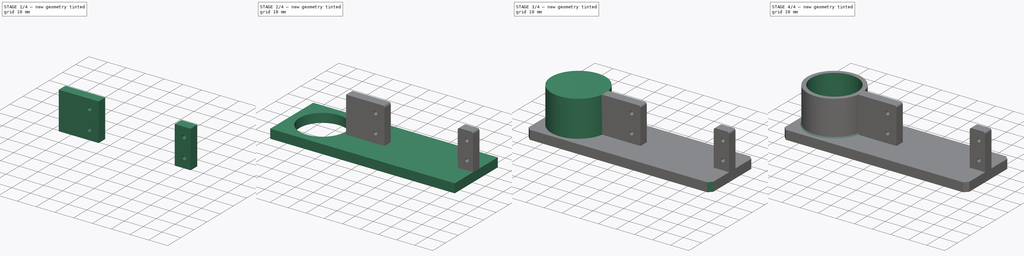
[diagram: build sequence overview — one tinted view per stage of 4, left to right]
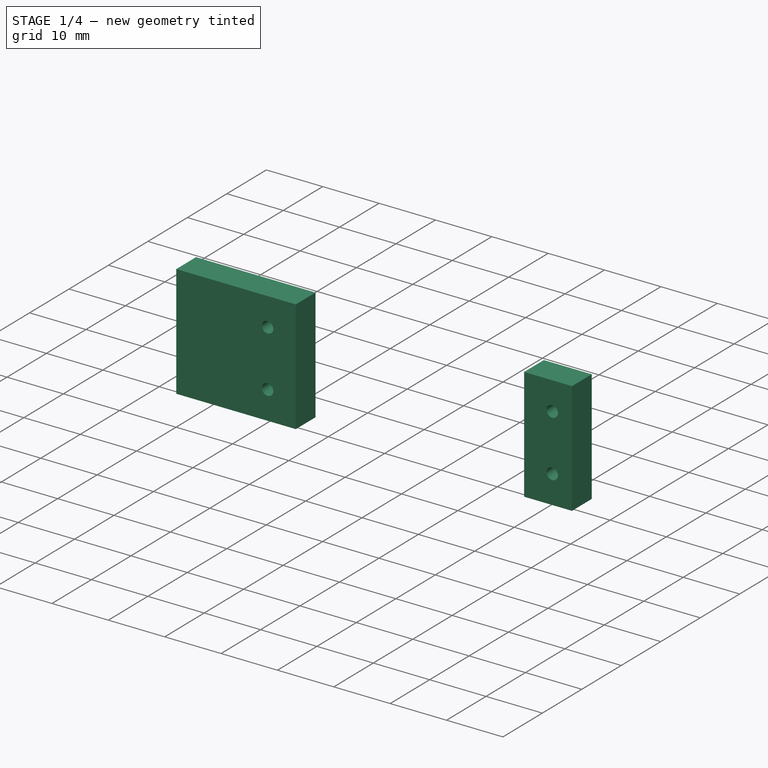
[diagram: stage 1 of 4 — iso view after this stage's code; geometry added in this stage tinted green]
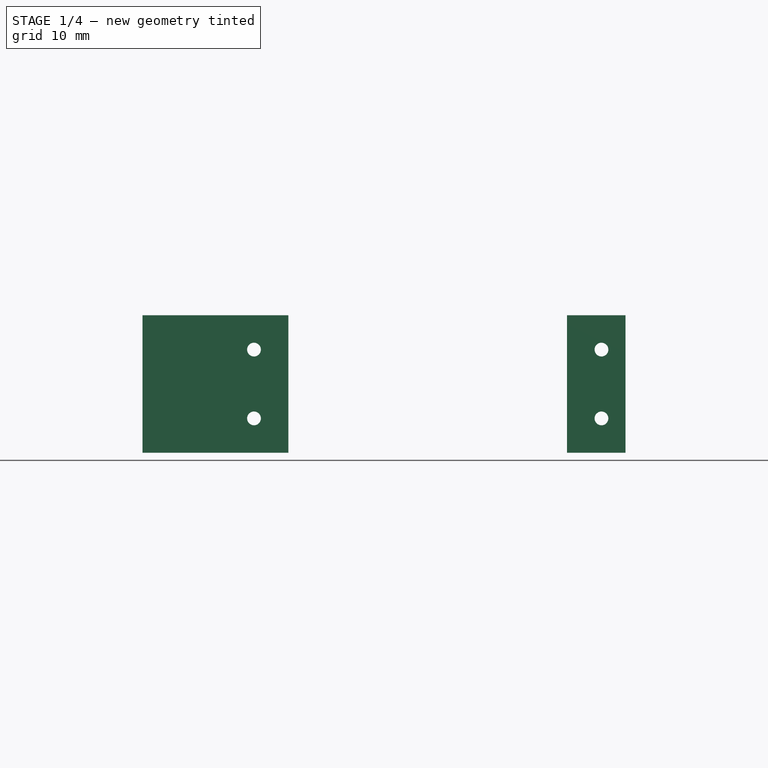
[diagram: stage 1 of 4 — front view after this stage's code; geometry added in this stage tinted green]
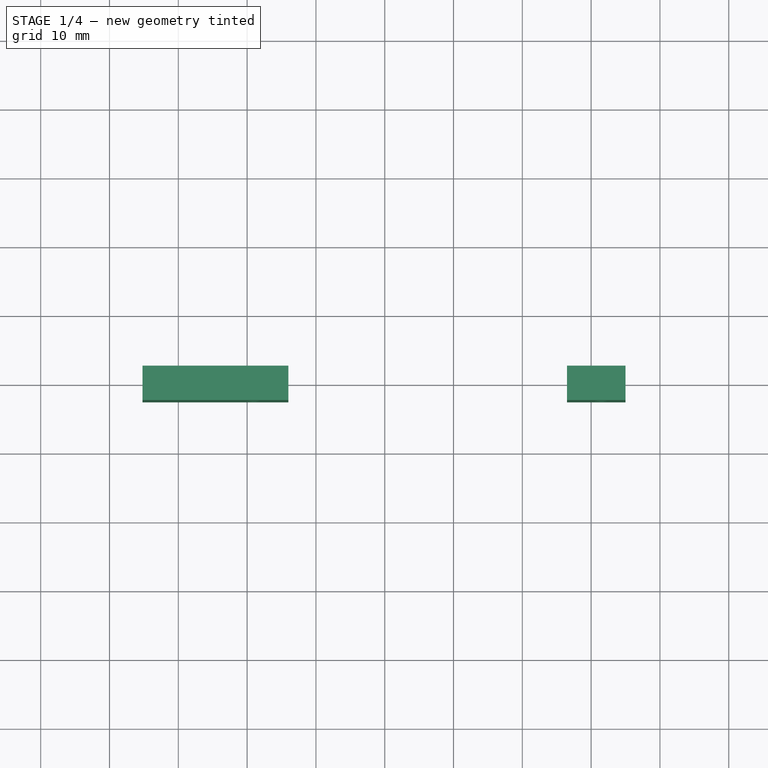
[diagram: stage 1 of 4 — top view after this stage's code; geometry added in this stage tinted green]
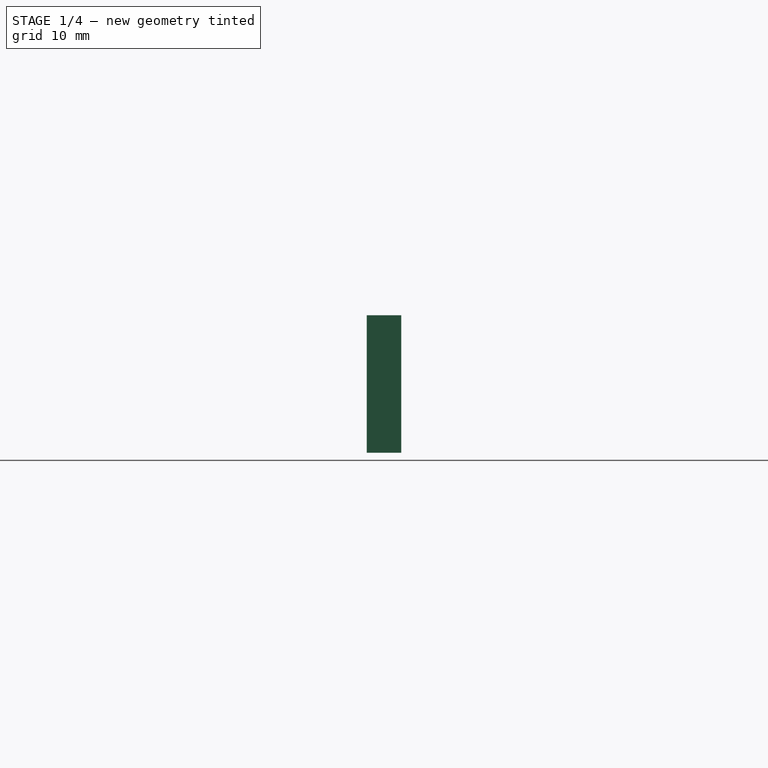
[diagram: stage 1 of 4 — right view after this stage's code; geometry added in this stage tinted green]
FCSTD DOCUMENT  (FreeCAD 0.15R4671 (Git))
Label: servo-mount
License: All rights reserved
LicenseURL: http://en.wikipedia.org/wiki/All_rights_reserved
objects: Sketcher::SketchObject×6, PartDesign::Pad×4, PartDesign::Pocket×2, PartDesign::Fillet×2, Drawing::FeatureViewPart×2, PartDesign::Chamfer×1, Part::Cut×1, Part::Fuse×1, Drawing::FeaturePage×1
note: 23 computed .brp shape members not serialized (recipe doc carries the construction recipe); baked Part::Feature solids carry a one-line shape summary decoded from their .brp

FEATURE [Sketcher::SketchObject] Sketch004
  Placement = pos=(0,0,5) rot=(0,0,1;0rad)
  sketch-geometry (6):
    g0: Circle [constr] CenterX=0 CenterY=0 CenterZ=0 NormalX=0 NormalY=0 NormalZ=1 Radius=15
    g1: GeomPoint [constr] X=65 Y=0 Z=0
    g2: LineSegment StartX=14.7902 StartY=-2.5 StartZ=0 EndX=85 EndY=-2.5 EndZ=0
    g3: LineSegment StartX=85 StartY=-2.5 StartZ=0 EndX=85 EndY=2.5 EndZ=0
    g4: LineSegment StartX=85 StartY=2.5 StartZ=0 EndX=14.7902 EndY=2.5 EndZ=0
    g5: LineSegment StartX=14.7902 StartY=2.5 StartZ=0 EndX=14.7902 EndY=-2.5 EndZ=0
  constraints (16):
    c: Coincident(g0,g-1)
    c: Radius(g0) = 15
    c: PointOnObject(g1,g-1)
    c: DistanceX(g-1,g1) = 65
    c: Coincident(g2,g3)
    c: Coincident(g3,g4)
    c: Coincident(g4,g5)
    c: Coincident(g5,g2)
    c: Horizontal(g2)
    c: Horizontal(g4)
    c: Vertical(g3)
    c: Vertical(g5)
    c: Symmetric(g2,g4,g-1)
    c: DistanceY(g3,g2) = -5
    c: PointOnObject(g4,g0)
    c: Distance(g1,g3) = 20
FEATURE [Sketcher::SketchObject] Sketch005
  Placement = pos=(0,-2.5,5) rot=(1,0,0;1.5708rad)
  sketch-geometry (8):
    g0: LineSegment StartX=36 StartY=20 StartZ=0 EndX=76.5 EndY=20 EndZ=0
    g1: LineSegment StartX=76.5 StartY=20 StartZ=0 EndX=76.5 EndY=0 EndZ=0
    g2: LineSegment StartX=76.5 StartY=0 StartZ=0 EndX=36 EndY=0 EndZ=0
    g3: LineSegment StartX=36 StartY=0 StartZ=0 EndX=36 EndY=20 EndZ=0
    g4: Circle CenterX=81.5 CenterY=15 CenterZ=0 NormalX=0 NormalY=0 NormalZ=1 Radius=1
    g5: Circle CenterX=81.5 CenterY=5 CenterZ=0 NormalX=0 NormalY=0 NormalZ=1 Radius=1
    g6: Circle CenterX=31 CenterY=15 CenterZ=0 NormalX=0 NormalY=0 NormalZ=1 Radius=1
    g7: Circle CenterX=31 CenterY=5 CenterZ=0 NormalX=0 NormalY=0 NormalZ=1 Radius=1
  constraints (24):
    c: Coincident(g0,g1)
    c: Coincident(g1,g2)
    c: Coincident(g2,g3)
    c: Coincident(g3,g0)
    c: Horizontal(g0)
    c: Horizontal(g2)
    c: Vertical(g1)
    c: Vertical(g3)
    c: PointOnObject(g1,g-1)
    c: Distance(g0,g1) = 20
    c: DistanceX(g-1,g2) = 36
    c: DistanceX(g0,g0) = 40.5
    c: Radius(g4) = 1
    c: DistanceX(g4,g0) = -5
    c: DistanceY(g4,g0) = 5
    c: Radius(g5) = 1
    c: DistanceY(g5,g1) = -5
    c: DistanceX(g5,g1) = -5
    c: Radius(g6) = 1
    c: Radius(g7) = 1
    c: DistanceX(g6,g0) = 5
    c: DistanceY(g6,g0) = 5
    c: DistanceY(g7,g2) = -5
    c: DistanceX(g7,g2) = 5
FEATURE [PartDesign::Pad] Pad002
  Length = 5
  Length2 = 100
  Placement = pos=(0,-2.5,5) rot=(1,0,0;1.5708rad)
  Reversed = true
  Sketch = -> Sketch005
  Type = 0
FEATURE [PartDesign::Pad] Pad003
  Length = 20
  Length2 = 100
  Placement = pos=(0,0,5) rot=(0,0,1;0rad)
  Sketch = -> Sketch004
  Type = 0
FEATURE [Part::Cut] Cut
  Base = -> Pad003
  Tool = -> Pad002
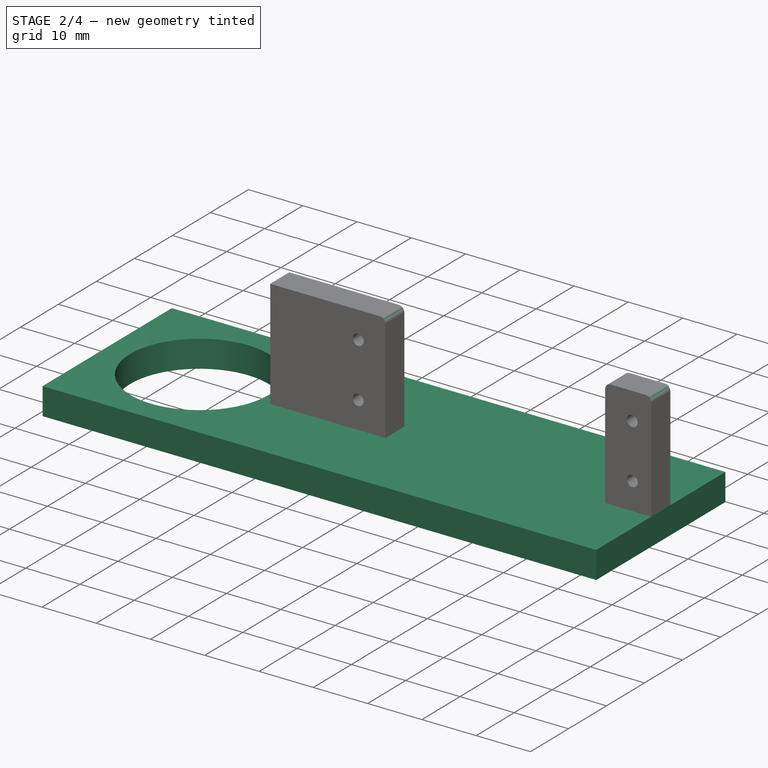
[diagram: stage 2 of 4 — iso view after this stage's code; geometry added in this stage tinted green]
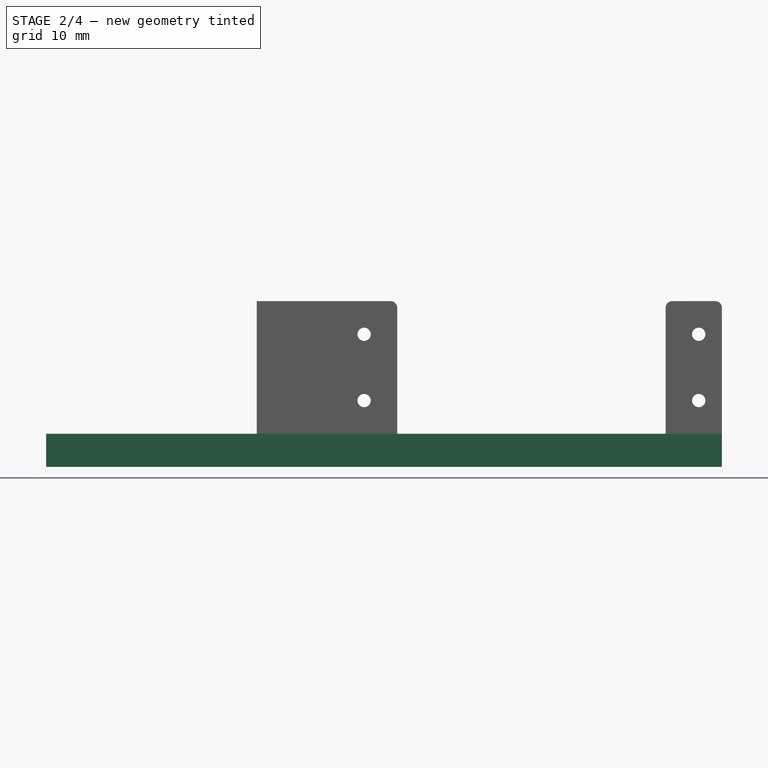
[diagram: stage 2 of 4 — front view after this stage's code; geometry added in this stage tinted green]
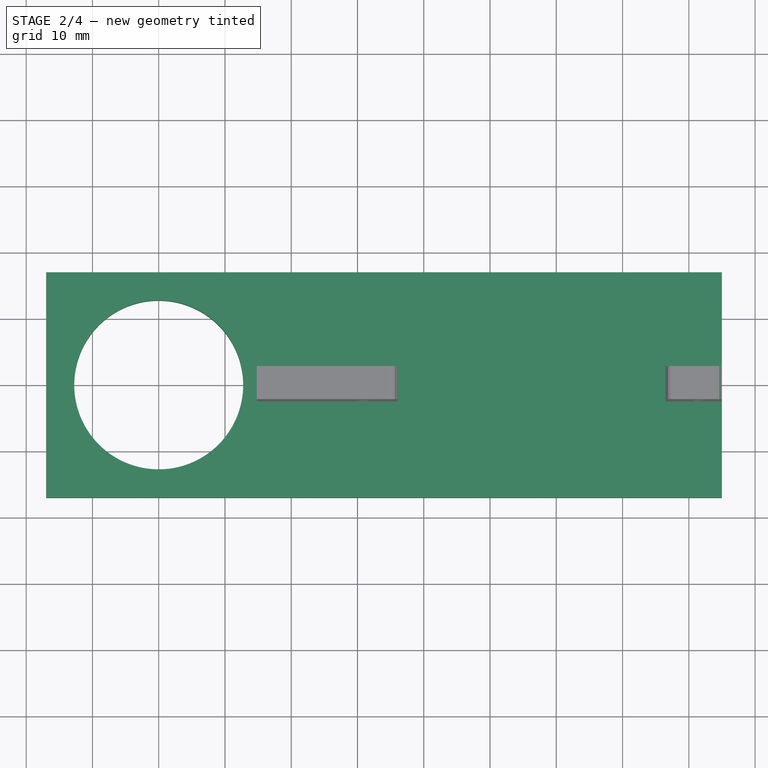
[diagram: stage 2 of 4 — top view after this stage's code; geometry added in this stage tinted green]
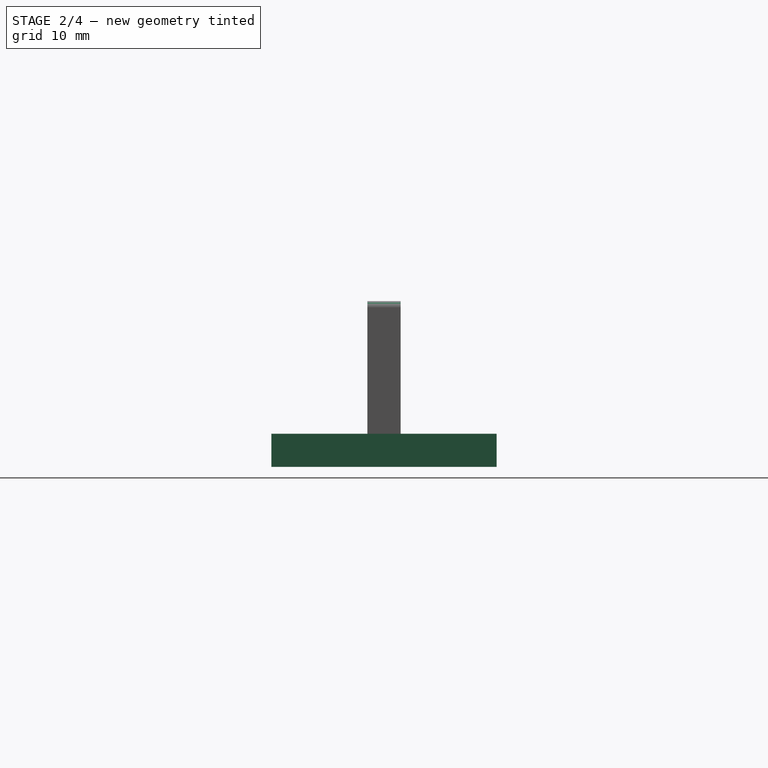
[diagram: stage 2 of 4 — right view after this stage's code; geometry added in this stage tinted green]
FEATURE [Sketcher::SketchObject] Sketch
  sketch-geometry (8):
    g0: Circle [constr] CenterX=0 CenterY=0 CenterZ=0 NormalX=0 NormalY=0 NormalZ=1 Radius=12.75
    g1: LineSegment StartX=-17 StartY=17 StartZ=0 EndX=85 EndY=17 EndZ=0
    g2: LineSegment StartX=85 StartY=17 StartZ=0 EndX=85 EndY=-17 EndZ=0
    g3: LineSegment StartX=85 StartY=-17 StartZ=0 EndX=-17 EndY=-17 EndZ=0
    g4: LineSegment StartX=-17 StartY=-17 StartZ=0 EndX=-17 EndY=17 EndZ=0
    g5: LineSegment [constr] StartX=0 StartY=0 StartZ=0 EndX=0 EndY=17 EndZ=0
    g6: LineSegment [constr] StartX=0 StartY=0 StartZ=0 EndX=-17 EndY=0 EndZ=0
    g7: LineSegment [constr] StartX=0 StartY=0 StartZ=0 EndX=85 EndY=0 EndZ=0
  constraints (23):
    c: Coincident(g0,g-1)
    c: Radius(g0) = 12.75
    c: Coincident(g1,g2)
    c: Coincident(g2,g3)
    c: Coincident(g3,g4)
    c: Coincident(g4,g1)
    c: Horizontal(g1)
    c: Horizontal(g3)
    c: Vertical(g2)
    c: Vertical(g4)
    c: Symmetric(g1,g3,g-1)
    c: Coincident(g5,g-1)
    c: PointOnObject(g5,g1)
    c: Vertical(g5)
    c: Distance(g5) = 17
    c: Coincident(g6,g-1)
    c: PointOnObject(g6,g4)
    c: Horizontal(g6)
    c: Distance(g6) = 17
    c: Coincident(g7,g-1)
    c: PointOnObject(g7,g2)
    c: Horizontal(g7)
    c: Distance(g7) = 85
FEATURE [PartDesign::Pad] Pad
  Length = 5
  Length2 = 100
  Sketch = -> Sketch
  Type = 0
FEATURE [Sketcher::SketchObject] Sketch001
  Placement = pos=(0,0,0) rot=(1,0,0;3.14159rad)
  Support = -> Pad [Face5]
  sketch-geometry (1):
    g0: Circle CenterX=0 CenterY=0 CenterZ=0 NormalX=0 NormalY=0 NormalZ=1 Radius=12.75
  constraints (2):
    c: Coincident(g0,g-1)
    c: Radius(g0) = 12.75
FEATURE [PartDesign::Pocket] Pocket
  Length = 5
  Sketch = -> Sketch001
  Type = 0
FEATURE [PartDesign::Fillet] Fillet001
  Base = -> Cut [Edge31,Edge29,Edge11]
  Radius = 1
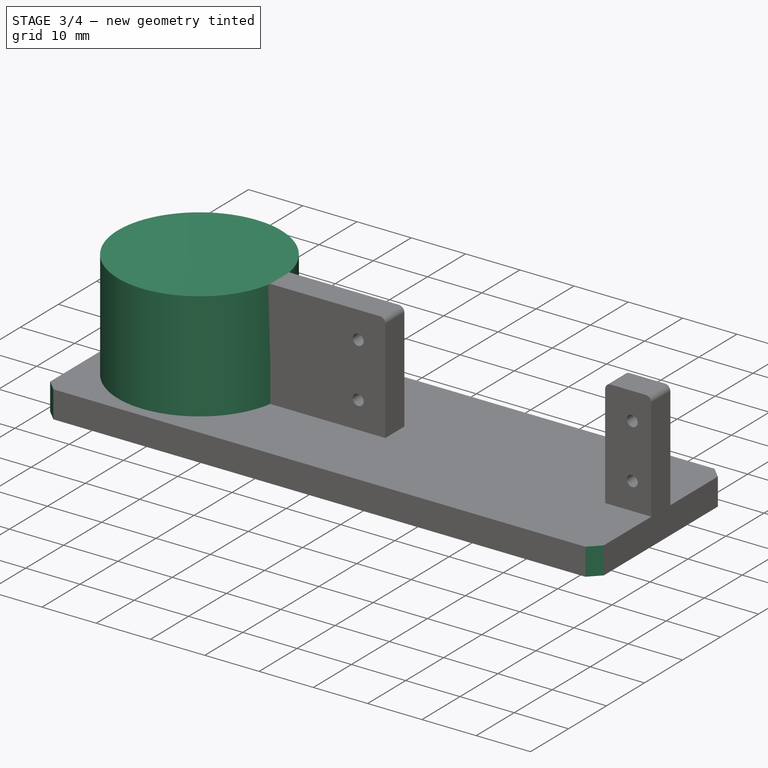
[diagram: stage 3 of 4 — iso view after this stage's code; geometry added in this stage tinted green]
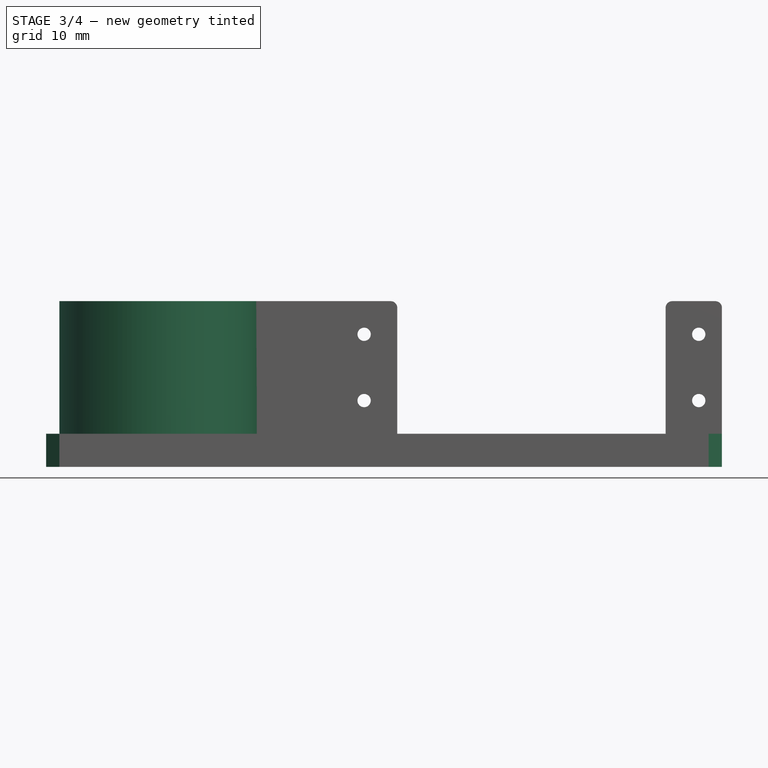
[diagram: stage 3 of 4 — front view after this stage's code; geometry added in this stage tinted green]
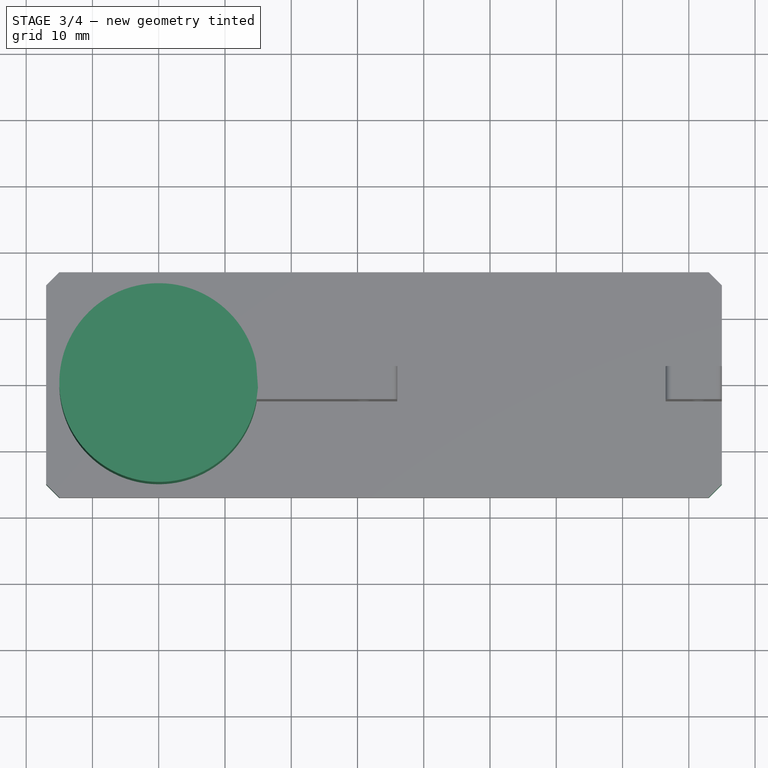
[diagram: stage 3 of 4 — top view after this stage's code; geometry added in this stage tinted green]
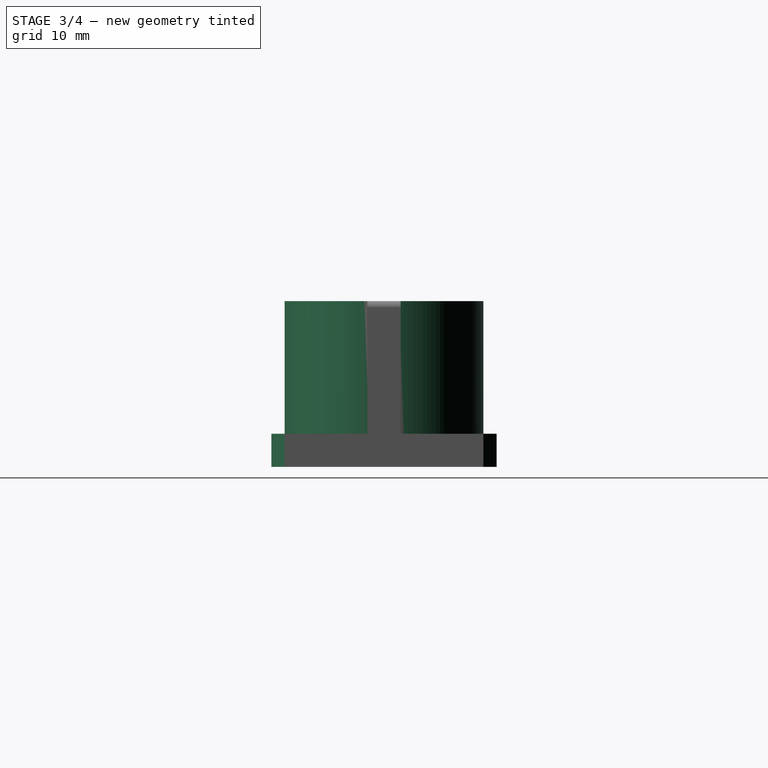
[diagram: stage 3 of 4 — right view after this stage's code; geometry added in this stage tinted green]
FEATURE [PartDesign::Chamfer] Chamfer
  Base = -> Pocket [Edge5,Edge8,Edge2,Edge1]
  Size = 2
FEATURE [Sketcher::SketchObject] Sketch002
  Placement = pos=(0,0,5) rot=(0,0,1;0rad)
  Support = -> Chamfer [Face5]
  sketch-geometry (1):
    g0: Circle CenterX=0 CenterY=0 CenterZ=0 NormalX=0 NormalY=0 NormalZ=1 Radius=15
  constraints (2):
    c: Coincident(g0,g-1)
    c: Radius(g0) = 15
FEATURE [PartDesign::Pad] Pad001
  Length = 20
  Length2 = 100
  Sketch = -> Sketch002
  Type = 0
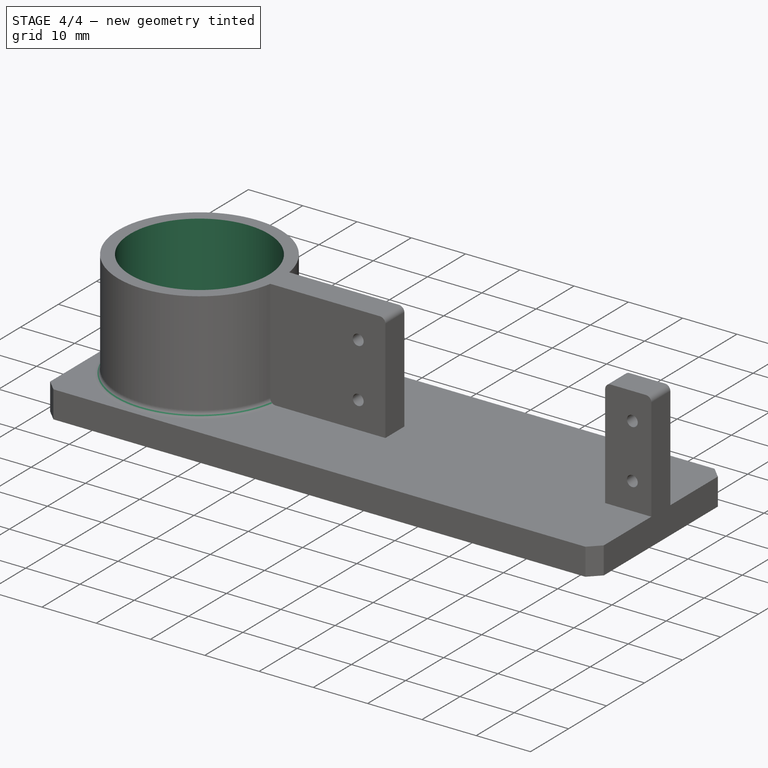
[diagram: stage 4 of 4 — iso view after this stage's code; geometry added in this stage tinted green]
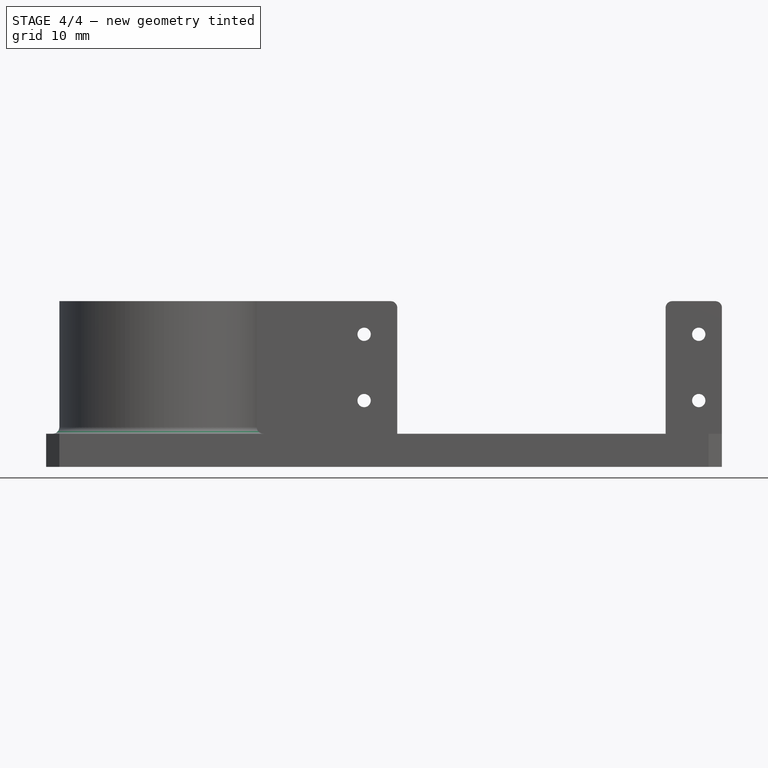
[diagram: stage 4 of 4 — front view after this stage's code; geometry added in this stage tinted green]
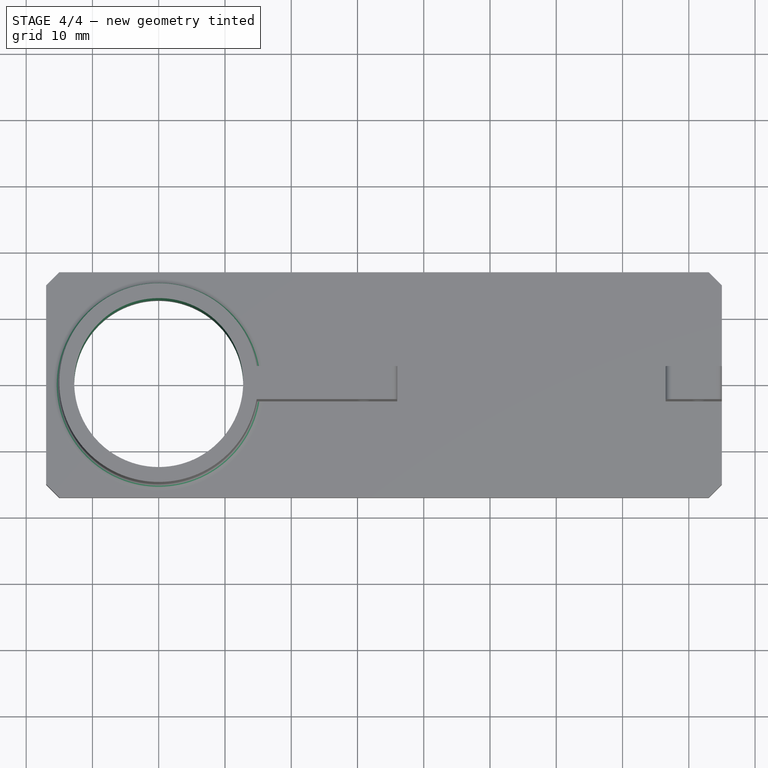
[diagram: stage 4 of 4 — top view after this stage's code; geometry added in this stage tinted green]
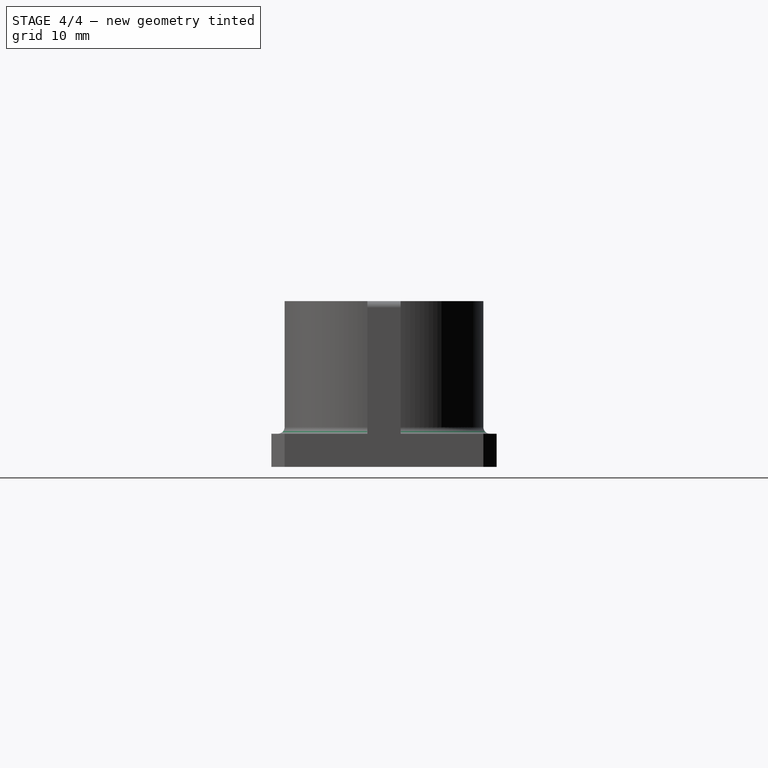
[diagram: stage 4 of 4 — right view after this stage's code; geometry added in this stage tinted green]
FEATURE [PartDesign::Fillet] Fillet
  Base = -> Pad001 [Edge2]
  Radius = 1
FEATURE [Part::Fuse] Fusion
  Base = -> Fillet
  Tool = -> Fillet001
FEATURE [Sketcher::SketchObject] Sketch006
  Placement = pos=(0,0,25) rot=(0,0,1;0rad)
  Support = -> Fusion [Face31]
  sketch-geometry (1):
    g0: Circle CenterX=0 CenterY=0 CenterZ=0 NormalX=0 NormalY=0 NormalZ=1 Radius=12.75
  constraints (2):
    c: Coincident(g0,g-1)
    c: Radius(g0) = 12.75
FEATURE [PartDesign::Pocket] Pocket001
  Length = 20
  Sketch = -> Sketch006
  Type = 0
FEATURE [Drawing::FeatureViewPart] View
  Direction = (0,0,1)
  HiddenWidth = 0.15
  LineWidth = 0.35
  Rotation = 0
  ShowHiddenLines = false
  ShowSmoothLines = false
  Source = -> Pocket001
  Tolerance = 0.05
  ViewResult = <blob: 2673 chars omitted>
  Visible = true
  X = 20
  Y = 20
FEATURE [Drawing::FeatureViewPart] View001
  Direction = (0,1,0)
  HiddenWidth = 0.15
  LineWidth = 0.35
  Rotation = 90
  ShowHiddenLines = false
  ShowSmoothLines = false
  Source = -> Pocket001
  Tolerance = 0.05
  ViewResult = <blob: 2276 chars omitted>
  Visible = true
  X = 20
  Y = 40
FEATURE [Drawing::FeaturePage] Page
  Group = -> [View,View001]
  Template = <path>
note: 1 file-system path scrubbed to <path> (originals preserved in the JSON sidecar)
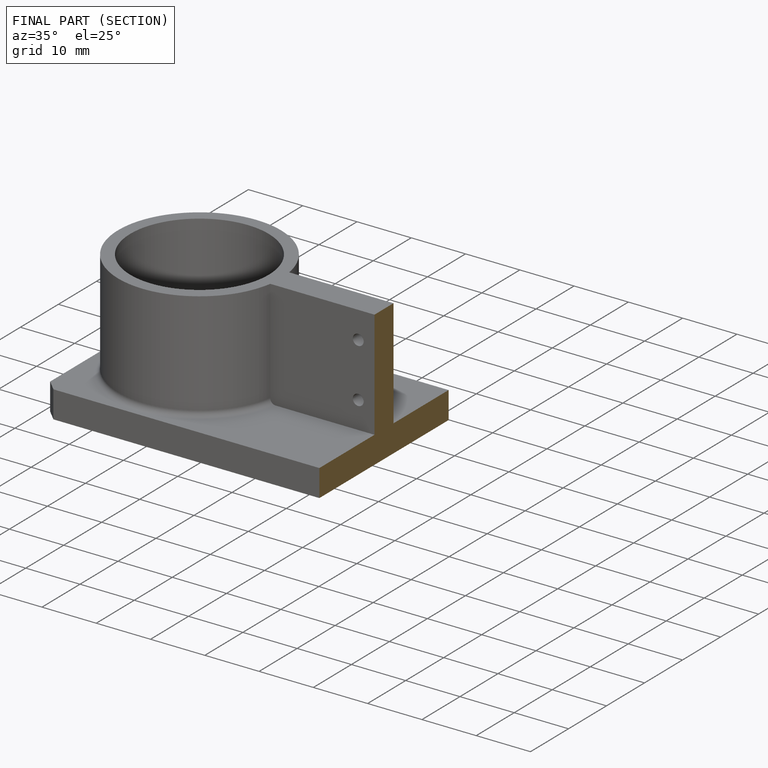
[diagram: finished part — half-section view (interior)]
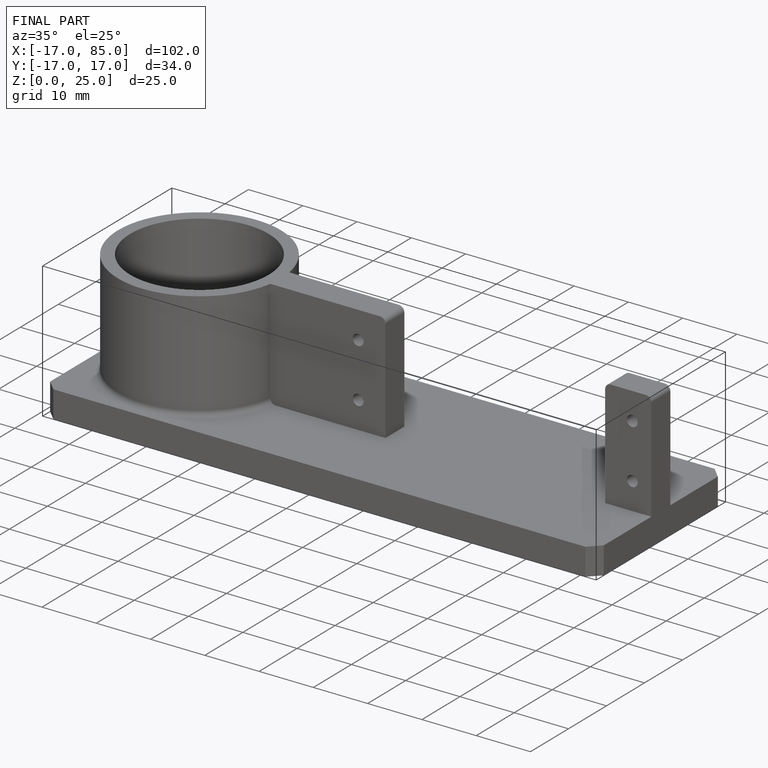
[diagram: finished part — iso view with bounding-box wireframe]
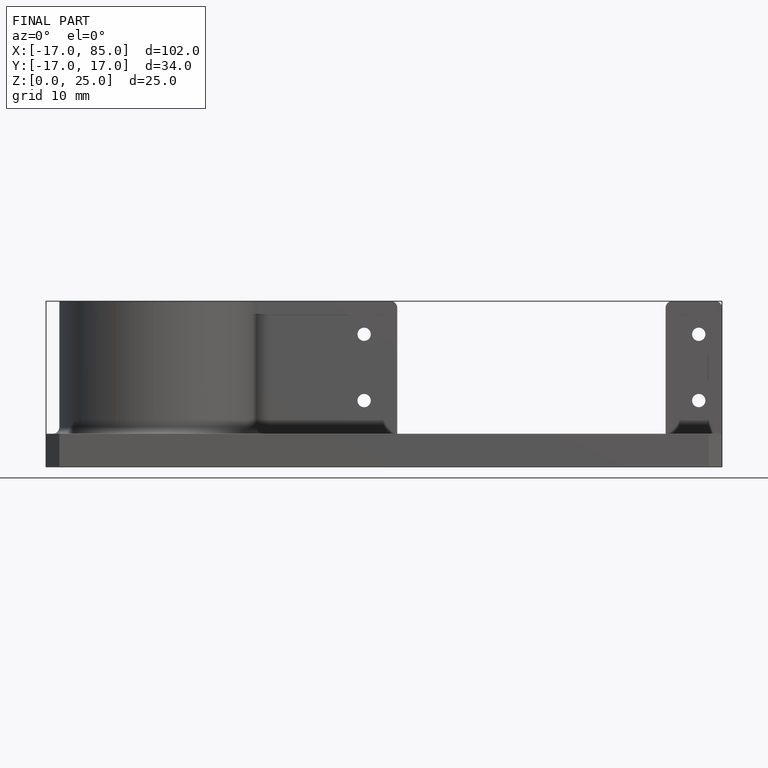
[diagram: finished part — front view with bounding-box wireframe]
